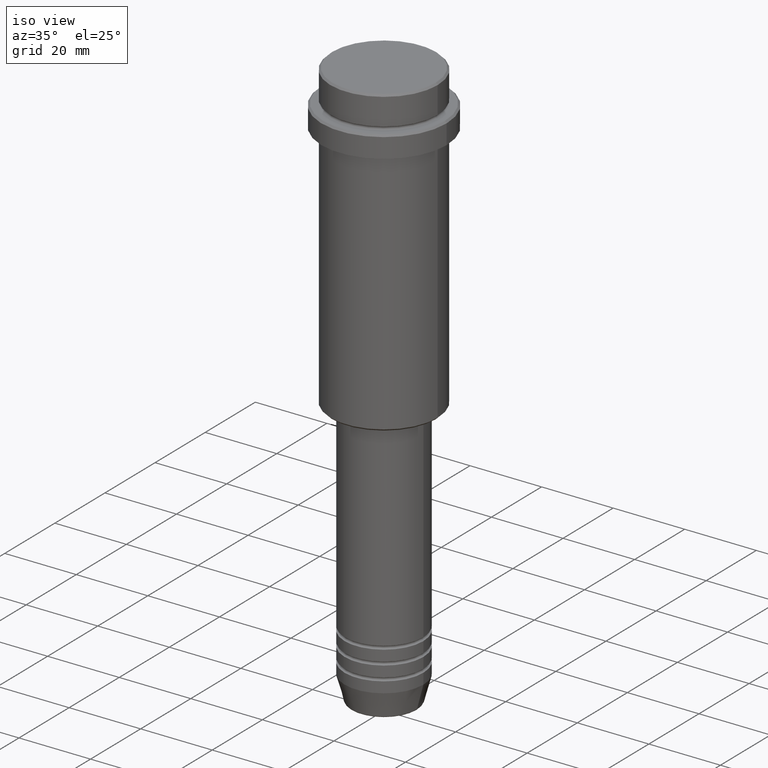
[diagram: clean part render]
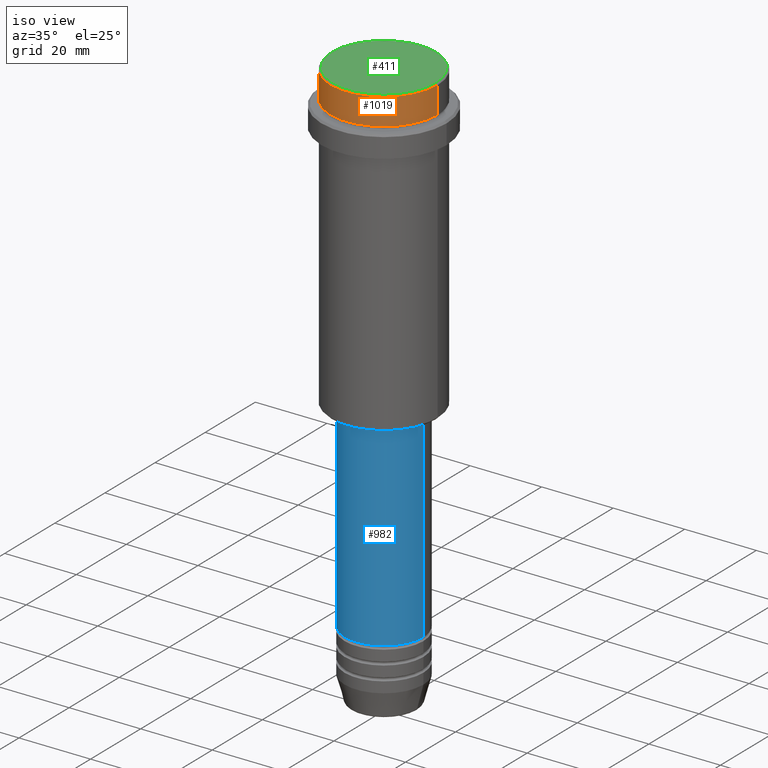
[diagram: same view with three faces highlighted in distinct colors, each labeled with its STEP entity id]
A machine part, iso view with three faces highlighted in distinct colors.
Their STEP definitions:

[orange] entity #1019 — the highlighted cylindrical surface (partial cylindrical patch) has radius 15 mm, axis along (-0, -0, 1).
#34 = DIRECTION ( 'NONE',  ( -0.000000000000000000, -0.000000000000000000, 1.000000000000000000 ) ) ;
#46 = VERTEX_POINT ( 'NONE', #1307 ) ;
#74 = VERTEX_POINT ( 'NONE', #944 ) ;
#96 = EDGE_LOOP ( 'NONE', ( #179, #949, #1292, #315 ) ) ;
#106 = VERTEX_POINT ( 'NONE', #621 ) ;
#177 = CARTESIAN_POINT ( 'NONE',  ( 0.000000000000000000, 0.000000000000000000, 0.000000000000000000 ) ) ;
#179 = ORIENTED_EDGE ( 'NONE', *, *, #1283, .F. ) ;
#189 = AXIS2_PLACEMENT_3D ( 'NONE', #1212, #1101, #238 ) ;
#191 = AXIS2_PLACEMENT_3D ( 'NONE', #177, #34, #262 ) ;
#238 = DIRECTION ( 'NONE',  ( 1.000000000000000000, 0.000000000000000000, 0.000000000000000000 ) ) ;
#262 = DIRECTION ( 'NONE',  ( 1.000000000000000000, 0.000000000000000000, 0.000000000000000000 ) ) ;
#315 = ORIENTED_EDGE ( 'NONE', *, *, #972, .T. ) ;
#487 = VECTOR ( 'NONE', #1412, 1000.000000000000000 ) ;
#621 = CARTESIAN_POINT ( 'NONE',  ( 15.00000000000000000, 0.000000000000000000, -7.999999999999998224 ) ) ;
#640 = CIRCLE ( 'NONE', #189, 15.00000000000000000 ) ;
#642 = VECTOR ( 'NONE', #1398, 1000.000000000000000 ) ;
#738 = DIRECTION ( 'NONE',  ( -0.000000000000000000, -0.000000000000000000, 1.000000000000000000 ) ) ;
#783 = LINE ( 'NONE', #1083, #487 ) ;
#806 = FACE_OUTER_BOUND ( 'NONE', #96, .T. ) ;
#809 = EDGE_CURVE ( 'NONE', #46, #106, #1141, .T. ) ;
#836 = LINE ( 'NONE', #955, #642 ) ;
#944 = CARTESIAN_POINT ( 'NONE',  ( 15.00000000000000000, 0.000000000000000000, -0.4999999999999970024 ) ) ;
#949 = ORIENTED_EDGE ( 'NONE', *, *, #809, .T. ) ;
#954 = CARTESIAN_POINT ( 'NONE',  ( 0.000000000000000000, 0.000000000000000000, -7.999999999999998224 ) ) ;
#955 = CARTESIAN_POINT ( 'NONE',  ( 15.00000000000000000, 0.000000000000000000, 0.000000000000000000 ) ) ;
#972 = EDGE_CURVE ( 'NONE', #74, #1294, #640, .T. ) ;
#975 = CARTESIAN_POINT ( 'NONE',  ( -15.00000000000000000, 1.836970198721029589E-15, -0.4999999999999970024 ) ) ;
#1019 = ADVANCED_FACE ( 'NONE', ( #806 ), #1022, .T. ) ;
#1022 = CYLINDRICAL_SURFACE ( 'NONE', #191, 15.00000000000000000 ) ;
#1083 = CARTESIAN_POINT ( 'NONE',  ( -15.00000000000000000, 1.836970198721029589E-15, 0.000000000000000000 ) ) ;
#1101 = DIRECTION ( 'NONE',  ( 0.000000000000000000, 0.000000000000000000, -1.000000000000000000 ) ) ;
#1141 = CIRCLE ( 'NONE', #1377, 15.00000000000000000 ) ;
#1207 = EDGE_CURVE ( 'NONE', #106, #74, #836, .T. ) ;
#1212 = CARTESIAN_POINT ( 'NONE',  ( 0.000000000000000000, 0.000000000000000000, -0.4999999999999970024 ) ) ;
#1283 = EDGE_CURVE ( 'NONE', #46, #1294, #783, .T. ) ;
#1286 = DIRECTION ( 'NONE',  ( 1.000000000000000000, 0.000000000000000000, 0.000000000000000000 ) ) ;
#1292 = ORIENTED_EDGE ( 'NONE', *, *, #1207, .T. ) ;
#1294 = VERTEX_POINT ( 'NONE', #975 ) ;
#1307 = CARTESIAN_POINT ( 'NONE',  ( -15.00000000000000000, 1.836970198721029589E-15, -7.999999999999998224 ) ) ;
#1377 = AXIS2_PLACEMENT_3D ( 'NONE', #954, #738, #1286 ) ;
#1398 = DIRECTION ( 'NONE',  ( -0.000000000000000000, -0.000000000000000000, 1.000000000000000000 ) ) ;
#1412 = DIRECTION ( 'NONE',  ( -0.000000000000000000, -0.000000000000000000, 1.000000000000000000 ) ) ;

[blue] entity #982 — the highlighted cylindrical surface (partial cylindrical patch) has radius 11 mm, axis along (-0, -0, 1).
#52 = CYLINDRICAL_SURFACE ( 'NONE', #619, 11.00000000000000000 ) ;
#101 = ORIENTED_EDGE ( 'NONE', *, *, #404, .T. ) ;
#160 = CARTESIAN_POINT ( 'NONE',  ( 11.00000000000000000, 0.000000000000000000, 0.000000000000000000 ) ) ;
#364 = CARTESIAN_POINT ( 'NONE',  ( 0.000000000000000000, 0.000000000000000000, 0.000000000000000000 ) ) ;
#384 = DIRECTION ( 'NONE',  ( 1.000000000000000000, 0.000000000000000000, 0.000000000000000000 ) ) ;
#391 = DIRECTION ( 'NONE',  ( -0.000000000000000000, -0.000000000000000000, 1.000000000000000000 ) ) ;
#404 = EDGE_CURVE ( 'NONE', #572, #545, #1133, .T. ) ;
#462 = LINE ( 'NONE', #1085, #1115 ) ;
#476 = DIRECTION ( 'NONE',  ( 1.000000000000000000, 0.000000000000000000, 0.000000000000000000 ) ) ;
#520 = ORIENTED_EDGE ( 'NONE', *, *, #1127, .F. ) ;
#545 = VERTEX_POINT ( 'NONE', #1230 ) ;
#572 = VERTEX_POINT ( 'NONE', #1068 ) ;
#609 = ORIENTED_EDGE ( 'NONE', *, *, #934, .F. ) ;
#619 = AXIS2_PLACEMENT_3D ( 'NONE', #364, #907, #476 ) ;
#630 = EDGE_CURVE ( 'NONE', #976, #572, #665, .T. ) ;
#665 = CIRCLE ( 'NONE', #707, 11.00000000000000000 ) ;
#684 = CARTESIAN_POINT ( 'NONE',  ( -11.00000000000000000, 1.347111479062088405E-15, -140.9999999999999147 ) ) ;
#707 = AXIS2_PLACEMENT_3D ( 'NONE', #1387, #1140, #384 ) ;
#834 = VERTEX_POINT ( 'NONE', #1110 ) ;
#845 = CIRCLE ( 'NONE', #939, 10.99999999999999822 ) ;
#864 = DIRECTION ( 'NONE',  ( -0.000000000000000000, -0.000000000000000000, 1.000000000000000000 ) ) ;
#907 = DIRECTION ( 'NONE',  ( -0.000000000000000000, -0.000000000000000000, 1.000000000000000000 ) ) ;
#934 = EDGE_CURVE ( 'NONE', #976, #834, #462, .T. ) ;
#939 = AXIS2_PLACEMENT_3D ( 'NONE', #1295, #963, #1271 ) ;
#963 = DIRECTION ( 'NONE',  ( -0.000000000000000000, -0.000000000000000000, 1.000000000000000000 ) ) ;
#976 = VERTEX_POINT ( 'NONE', #684 ) ;
#982 = ADVANCED_FACE ( 'NONE', ( #1232 ), #52, .T. ) ;
#993 = ORIENTED_EDGE ( 'NONE', *, *, #630, .T. ) ;
#1068 = CARTESIAN_POINT ( 'NONE',  ( 11.00000000000000000, 0.000000000000000000, -140.9999999999999147 ) ) ;
#1085 = CARTESIAN_POINT ( 'NONE',  ( -11.00000000000000000, 1.347111479062088405E-15, 0.000000000000000000 ) ) ;
#1110 = CARTESIAN_POINT ( 'NONE',  ( -10.99999999999999822, 1.347111479062088207E-15, -86.00000000000000000 ) ) ;
#1115 = VECTOR ( 'NONE', #864, 1000.000000000000000 ) ;
#1127 = EDGE_CURVE ( 'NONE', #834, #545, #845, .T. ) ;
#1133 = LINE ( 'NONE', #160, #1284 ) ;
#1140 = DIRECTION ( 'NONE',  ( -0.000000000000000000, -0.000000000000000000, 1.000000000000000000 ) ) ;
#1230 = CARTESIAN_POINT ( 'NONE',  ( 10.99999999999999822, 0.000000000000000000, -86.00000000000000000 ) ) ;
#1232 = FACE_OUTER_BOUND ( 'NONE', #1413, .T. ) ;
#1271 = DIRECTION ( 'NONE',  ( 1.000000000000000000, 0.000000000000000000, 0.000000000000000000 ) ) ;
#1284 = VECTOR ( 'NONE', #391, 1000.000000000000000 ) ;
#1295 = CARTESIAN_POINT ( 'NONE',  ( 0.000000000000000000, 0.000000000000000000, -86.00000000000000000 ) ) ;
#1387 = CARTESIAN_POINT ( 'NONE',  ( 0.000000000000000000, 0.000000000000000000, -140.9999999999999147 ) ) ;
#1413 = EDGE_LOOP ( 'NONE', ( #609, #993, #101, #520 ) ) ;

[green] entity #411 — the highlighted planar face has unit normal (0, -0, 1).
#27 = AXIS2_PLACEMENT_3D ( 'NONE', #548, #519, #650 ) ;
#84 = ORIENTED_EDGE ( 'NONE', *, *, #1034, .T. ) ;
#118 = ORIENTED_EDGE ( 'NONE', *, *, #604, .T. ) ;
#120 = AXIS2_PLACEMENT_3D ( 'NONE', #1249, #470, #920 ) ;
#372 = CIRCLE ( 'NONE', #729, 14.49999999999999645 ) ;
#411 = ADVANCED_FACE ( 'NONE', ( #1173 ), #534, .T. ) ;
#464 = VERTEX_POINT ( 'NONE', #918 ) ;
#470 = DIRECTION ( 'NONE',  ( -0.000000000000000000, -0.000000000000000000, 1.000000000000000000 ) ) ;
#519 = DIRECTION ( 'NONE',  ( 0.000000000000000000, -0.000000000000000000, 1.000000000000000000 ) ) ;
#534 = PLANE ( 'NONE',  #27 ) ;
#548 = CARTESIAN_POINT ( 'NONE',  ( 0.000000000000000000, 0.000000000000000000, 0.000000000000000000 ) ) ;
#604 = EDGE_CURVE ( 'NONE', #464, #1221, #372, .T. ) ;
#650 = DIRECTION ( 'NONE',  ( 1.000000000000000000, 0.000000000000000000, 0.000000000000000000 ) ) ;
#729 = AXIS2_PLACEMENT_3D ( 'NONE', #1347, #797, #1367 ) ;
#797 = DIRECTION ( 'NONE',  ( -0.000000000000000000, -0.000000000000000000, 1.000000000000000000 ) ) ;
#884 = EDGE_LOOP ( 'NONE', ( #118, #84 ) ) ;
#918 = CARTESIAN_POINT ( 'NONE',  ( -14.49999999999999645, 0.000000000000000000, 0.000000000000000000 ) ) ;
#920 = DIRECTION ( 'NONE',  ( 1.000000000000000000, 0.000000000000000000, 0.000000000000000000 ) ) ;
#1034 = EDGE_CURVE ( 'NONE', #1221, #464, #1076, .T. ) ;
#1069 = CARTESIAN_POINT ( 'NONE',  ( 14.49999999999999645, 1.806354028742345802E-15, 0.000000000000000000 ) ) ;
#1076 = CIRCLE ( 'NONE', #120, 14.49999999999999645 ) ;
#1173 = FACE_OUTER_BOUND ( 'NONE', #884, .T. ) ;
#1221 = VERTEX_POINT ( 'NONE', #1069 ) ;
#1249 = CARTESIAN_POINT ( 'NONE',  ( 0.000000000000000000, 0.000000000000000000, 0.000000000000000000 ) ) ;
#1347 = CARTESIAN_POINT ( 'NONE',  ( 0.000000000000000000, 0.000000000000000000, 0.000000000000000000 ) ) ;
#1367 = DIRECTION ( 'NONE',  ( 1.000000000000000000, 0.000000000000000000, 0.000000000000000000 ) ) ;